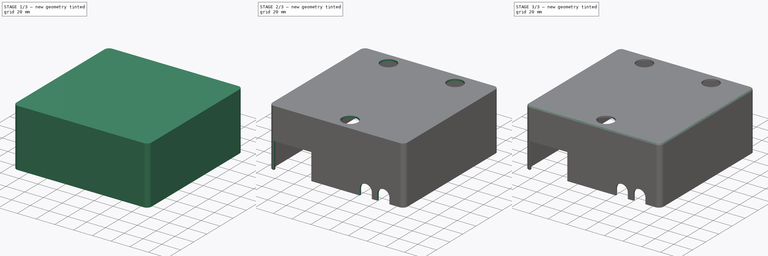
[diagram: build sequence overview — one tinted view per stage of 3, left to right]
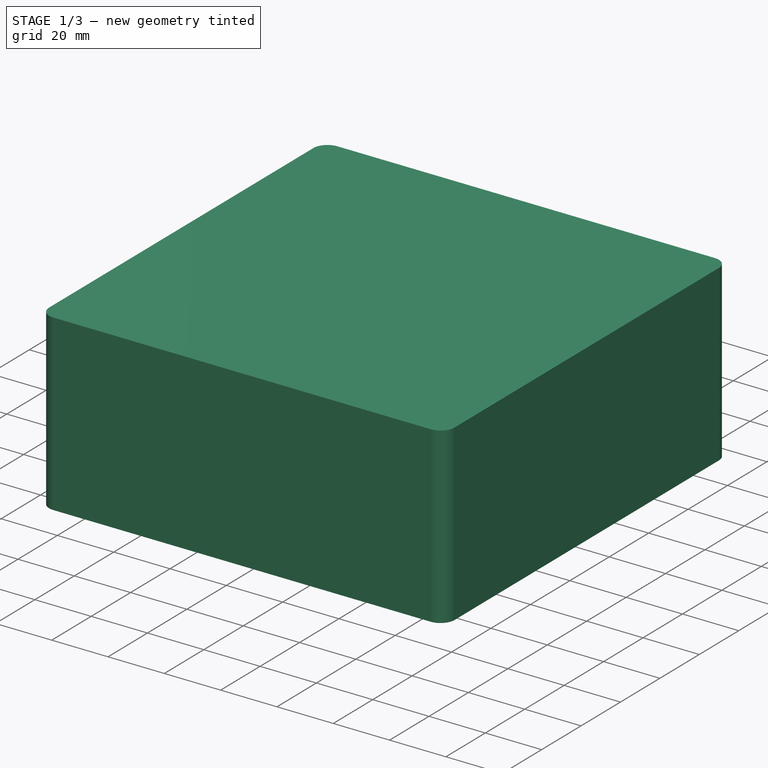
[diagram: stage 1 of 3 — iso view after this stage's code; geometry added in this stage tinted green]
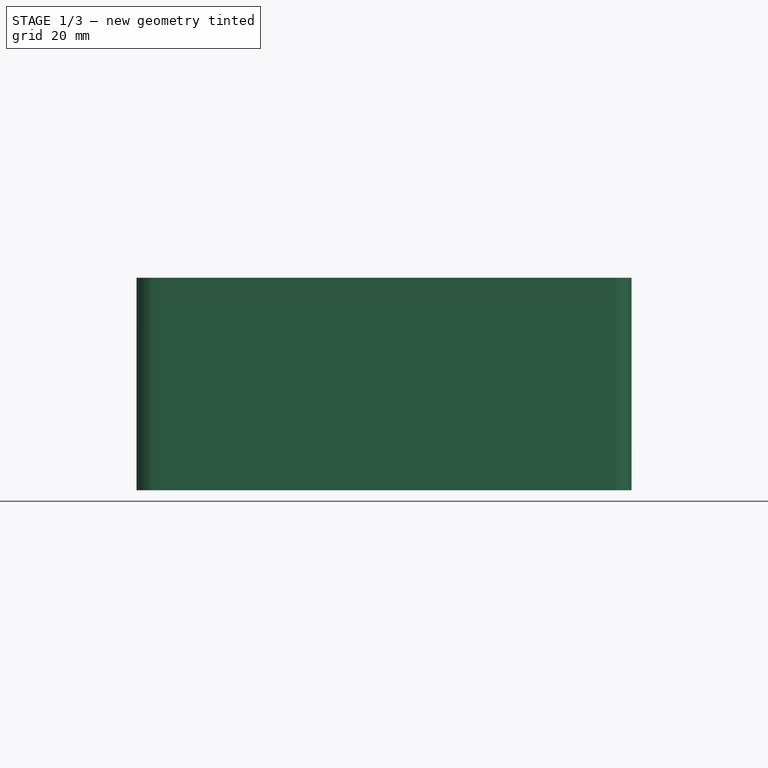
[diagram: stage 1 of 3 — front view after this stage's code; geometry added in this stage tinted green]
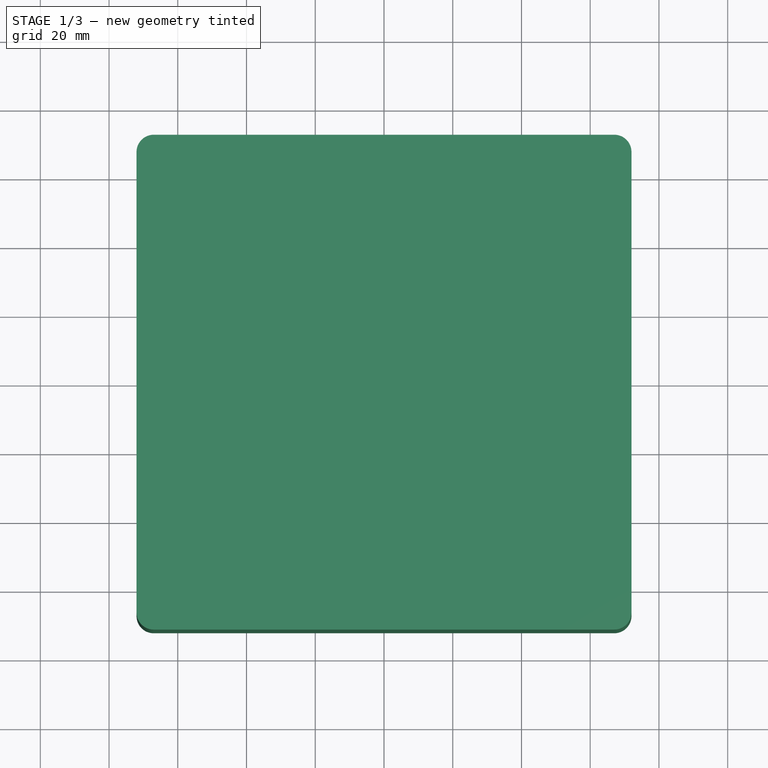
[diagram: stage 1 of 3 — top view after this stage's code; geometry added in this stage tinted green]
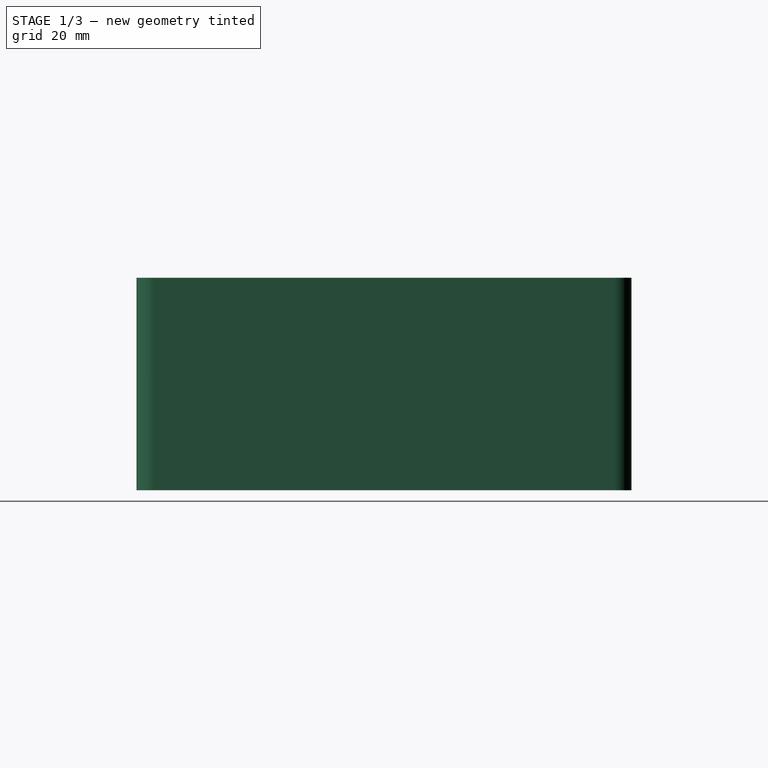
[diagram: stage 1 of 3 — right view after this stage's code; geometry added in this stage tinted green]
FCSTD DOCUMENT  (FreeCAD 0.16R5919 (Git))
Label: case_raspberryB_cover
License: All rights reserved
LicenseURL: http://en.wikipedia.org/wiki/All_rights_reserved
objects: Sketcher::SketchObject×4, PartDesign::Pad×2, PartDesign::Pocket×2, PartDesign::Fillet×2
note: 14 computed .brp shape members not serialized (recipe doc carries the construction recipe); baked Part::Feature solids carry a one-line shape summary decoded from their .brp

FEATURE [Sketcher::SketchObject] Sketch014  label="SketchCaseWall"
  sketch-geometry (16):
    g0: LineSegment StartX=-67 StartY=72 StartZ=0 EndX=67 EndY=72 EndZ=0
    g1: LineSegment StartX=72 StartY=67 StartZ=0 EndX=72 EndY=-67 EndZ=0
    g2: LineSegment StartX=67 StartY=-72 StartZ=0 EndX=-67 EndY=-72 EndZ=0
    g3: LineSegment StartX=-72 StartY=-67 StartZ=0 EndX=-72 EndY=67 EndZ=0
    g4: ArcOfCircle CenterX=-67 CenterY=67 CenterZ=0 NormalX=0 NormalY=0 NormalZ=1 Radius=5 StartAngle=1.5708 EndAngle=3.14159
    g5: ArcOfCircle CenterX=67 CenterY=67 CenterZ=0 NormalX=0 NormalY=0 NormalZ=1 Radius=5 StartAngle=0 EndAngle=1.5708
    g6: ArcOfCircle CenterX=67 CenterY=-67 CenterZ=0 NormalX=0 NormalY=0 NormalZ=1 Radius=5 StartAngle=4.71239 EndAngle=6.28319
    g7: ArcOfCircle CenterX=-67 CenterY=-67 CenterZ=0 NormalX=0 NormalY=0 NormalZ=1 Radius=5 StartAngle=3.14159 EndAngle=4.71239
    g8: LineSegment StartX=-65 StartY=70 StartZ=0 EndX=65 EndY=70 EndZ=0
    g9: LineSegment StartX=70 StartY=65 StartZ=0 EndX=70 EndY=-65 EndZ=0
    g10: LineSegment StartX=65 StartY=-70 StartZ=0 EndX=-65 EndY=-70 EndZ=0
    g11: LineSegment StartX=-70 StartY=-65 StartZ=0 EndX=-70 EndY=65 EndZ=0
    g12: ArcOfCircle CenterX=-65 CenterY=65 CenterZ=0 NormalX=0 NormalY=0 NormalZ=1 Radius=5 StartAngle=1.5708 EndAngle=3.14159
    g13: ArcOfCircle CenterX=65 CenterY=65 CenterZ=0 NormalX=0 NormalY=0 NormalZ=1 Radius=5 StartAngle=0 EndAngle=1.5708
    g14: ArcOfCircle CenterX=65 CenterY=-65 CenterZ=0 NormalX=0 NormalY=0 NormalZ=1 Radius=5 StartAngle=4.71239 EndAngle=6.28319
    g15: ArcOfCircle CenterX=-65 CenterY=-65 CenterZ=0 NormalX=0 NormalY=0 NormalZ=1 Radius=5 StartAngle=3.14159 EndAngle=4.71239
  constraints (37):
    c: Horizontal(g0)
    c: Horizontal(g2)
    c: Tangent(g3,g4) = 1.5708
    c: Tangent(g0,g4) = 1.5708
    c: Tangent(g0,g5) = 1.5708
    c: Tangent(g1,g5) = 1.5708
    c: Tangent(g1,g6) = 1.5708
    c: Tangent(g2,g6) = 1.5708
    c: Tangent(g3,g7) = 1.5708
    c: Tangent(g2,g7) = 1.5708
    c: Equal(g7,g4)
    c: Equal(g4,g5)
    c: Equal(g5,g6)
    c: Symmetric(g3,g1,g-2)
    c: Symmetric(g0,g2,g-1)
    c: DistanceX(g3,g1) = 144
    c: DistanceY(g0,g2) = -144
    c: Radius(g4) = 5
    c: Horizontal(g8)
    c: Horizontal(g10)
    c: Tangent(g11,g12) = 1.5708
    c: Tangent(g8,g12) = 1.5708
    c: Tangent(g8,g13) = 1.5708
    c: Tangent(g9,g13) = 1.5708
    c: Tangent(g9,g14) = 1.5708
    c: Tangent(g10,g14) = 1.5708
    c: Tangent(g11,g15) = 1.5708
    c: Tangent(g10,g15) = 1.5708
    c: Equal(g15,g12)
    c: Equal(g12,g13)
    c: Equal(g13,g14)
    c: DistanceX(g11,g9) = 140
    c: DistanceY(g8,g10) = -140
    c: Equal(g4,g12) = 5
    c: Symmetric(g8,g10,g-1)
    c: Vertical(g9)
    c: Symmetric(g11,g9,g-2)
FEATURE [PartDesign::Pad] Pad
  Length = 60
  Length2 = 100
  Sketch = -> Sketch014
  Type = 0
FEATURE [Sketcher::SketchObject] Sketch015  label="SketchCaseFront"
  Placement = pos=(0,0,60) rot=(0,0,1;0rad)
  Support = -> Pad [Face18]
  sketch-geometry (8):
    g0: LineSegment StartX=-67 StartY=72 StartZ=0 EndX=67 EndY=72 EndZ=0
    g1: LineSegment StartX=72 StartY=67 StartZ=0 EndX=72 EndY=-67 EndZ=0
    g2: LineSegment StartX=67 StartY=-72 StartZ=0 EndX=-67 EndY=-72 EndZ=0
    g3: LineSegment StartX=-72 StartY=-67 StartZ=0 EndX=-72 EndY=67 EndZ=0
    g4: ArcOfCircle CenterX=-67 CenterY=67 CenterZ=0 NormalX=0 NormalY=0 NormalZ=1 Radius=5 StartAngle=1.5708 EndAngle=3.14159
    g5: ArcOfCircle CenterX=67 CenterY=67 CenterZ=0 NormalX=0 NormalY=0 NormalZ=1 Radius=5 StartAngle=0 EndAngle=1.5708
    g6: ArcOfCircle CenterX=67 CenterY=-67 CenterZ=0 NormalX=0 NormalY=0 NormalZ=1 Radius=5 StartAngle=4.71239 EndAngle=6.28319
    g7: ArcOfCircle CenterX=-67 CenterY=-67 CenterZ=0 NormalX=0 NormalY=0 NormalZ=1 Radius=5 StartAngle=3.14159 EndAngle=4.71239
  constraints (18):
    c: Horizontal(g0)
    c: Horizontal(g2)
    c: Tangent(g3,g4) = 1.5708
    c: Tangent(g0,g4) = 1.5708
    c: Tangent(g0,g5) = 1.5708
    c: Tangent(g1,g5) = 1.5708
    c: Tangent(g1,g6) = 1.5708
    c: Tangent(g2,g6) = 1.5708
    c: Tangent(g3,g7) = 1.5708
    c: Tangent(g2,g7) = 1.5708
    c: Equal(g7,g4)
    c: Equal(g4,g5)
    c: Equal(g5,g6)
    c: Symmetric(g3,g1,g-2)
    c: Symmetric(g0,g2,g-1)
    c: DistanceX(g3,g1) = 144
    c: DistanceY(g0,g2) = -144
    c: Radius(g4) = 5
FEATURE [PartDesign::Pad] Pad001
  Length = 1.8
  Length2 = 100
  Sketch = -> Sketch015
  Type = 0
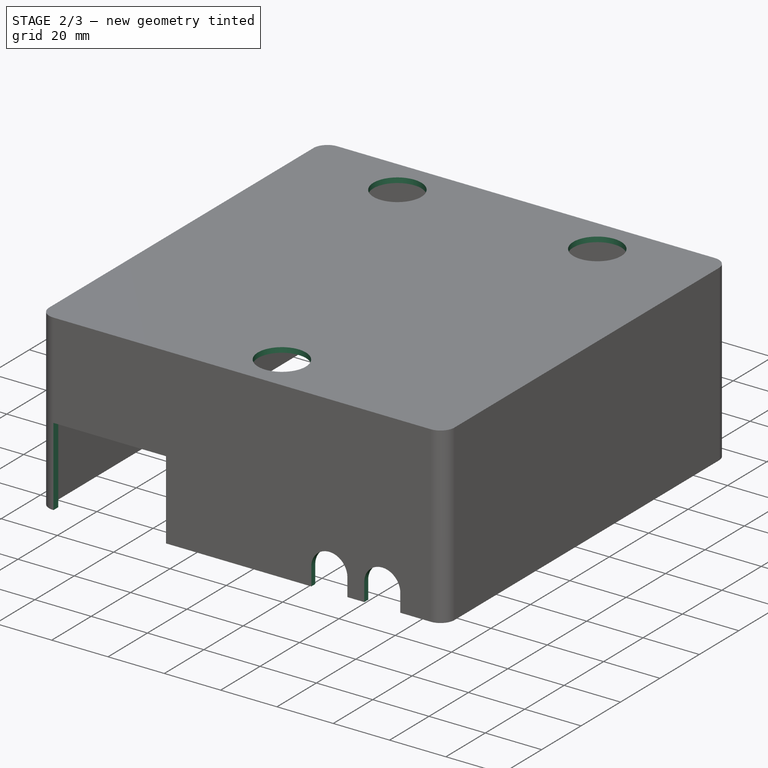
[diagram: stage 2 of 3 — iso view after this stage's code; geometry added in this stage tinted green]
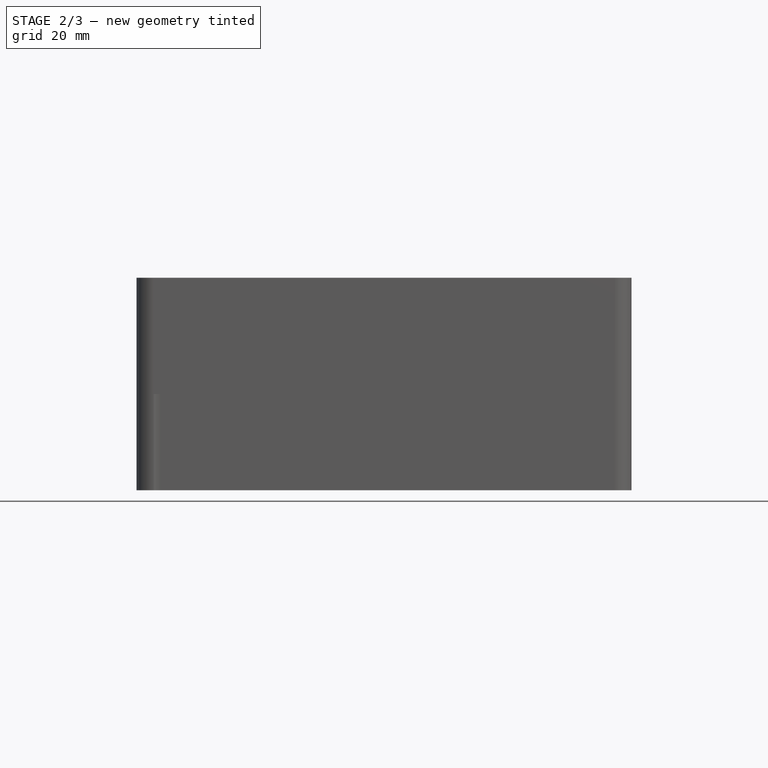
[diagram: stage 2 of 3 — front view after this stage's code; geometry added in this stage tinted green]
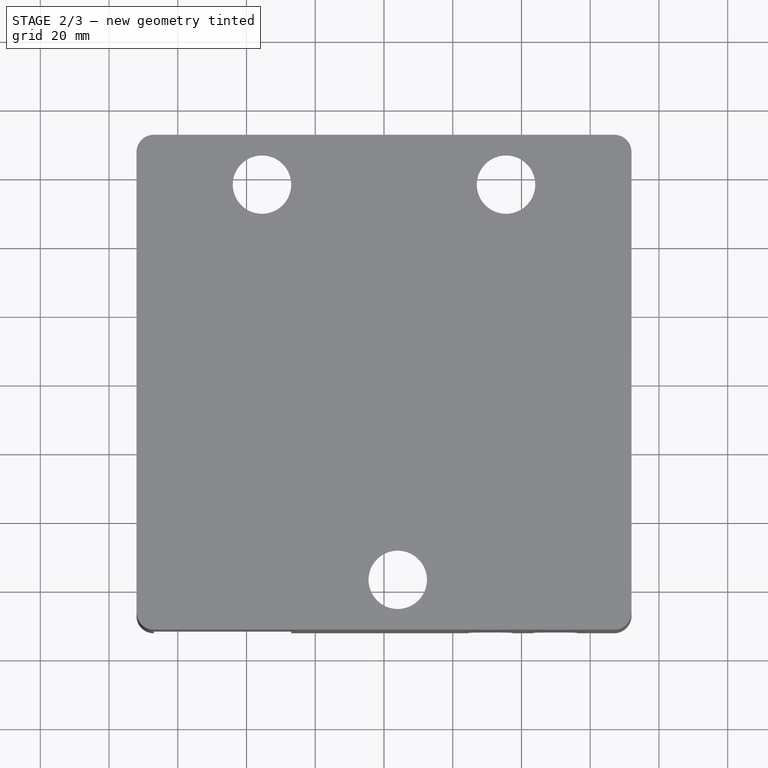
[diagram: stage 2 of 3 — top view after this stage's code; geometry added in this stage tinted green]
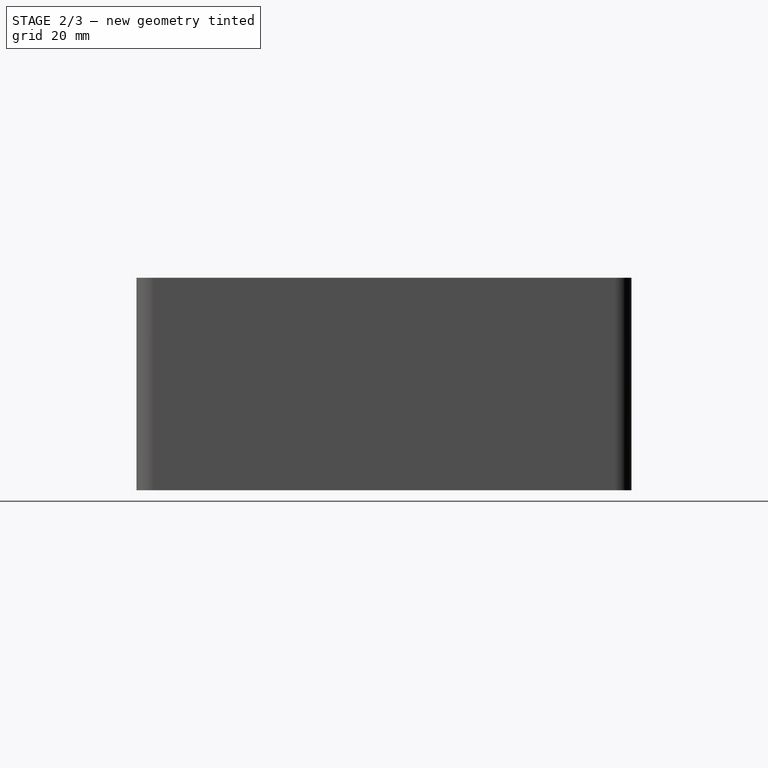
[diagram: stage 2 of 3 — right view after this stage's code; geometry added in this stage tinted green]
FEATURE [Sketcher::SketchObject] Sketch004  label="SketchSuckerMounting"
  Placement = pos=(0,0,61.8) rot=(0,0,1;0rad)
  Support = -> Pad001 [Face27]
  sketch-geometry (5):
    g0: Circle CenterX=-35.5 CenterY=57.5 CenterZ=0 NormalX=0 NormalY=0 NormalZ=1 Radius=8.5
    g1: Circle CenterX=35.5 CenterY=57.5 CenterZ=0 NormalX=0 NormalY=0 NormalZ=1 Radius=8.5
    g2: Circle CenterX=4 CenterY=-57.5 CenterZ=0 NormalX=0 NormalY=0 NormalZ=1 Radius=8.5
    g3: LineSegment [constr] StartX=-35.5 StartY=57.5 StartZ=0 EndX=0 EndY=57.5 EndZ=0
    g4: LineSegment [constr] StartX=0 StartY=57.5 StartZ=0 EndX=35.5 EndY=57.5 EndZ=0
  constraints (13):
    c: Symmetric(g0,g1,g-2)
    c: Radius(g1) = 8.5
    c: Equal(g2,g1)
    c: Coincident(g3,g0)
    c: PointOnObject(g3,g-2)
    c: Horizontal(g3)
    c: Coincident(g4,g3)
    c: Coincident(g4,g1)
    c: DistanceX(g-1,g2) = 4
    c: DistanceY(g-1,g2) = -57.5
    c: DistanceY(g-1,g1) = 57.5
    c: Equal(g0,g1)
    c: DistanceX(g0,g1) = 71
FEATURE [PartDesign::Pocket] Pocket
  Length = 5
  Sketch = -> Sketch004
  Type = 0
FEATURE [Sketcher::SketchObject] Sketch016  label="SketchCableHole"
  Placement = pos=(0,-72,0) rot=(1,0,0;1.5708rad)
  Support = -> Pocket [Face8]
  sketch-geometry (13):
    g0: ArcOfCircle CenterX=31 CenterY=6.4 CenterZ=0 NormalX=0 NormalY=0 NormalZ=1 Radius=6.4 StartAngle=0 EndAngle=3.14159
    g1: LineSegment StartX=24.6 StartY=6.4 StartZ=0 EndX=24.6 EndY=0 EndZ=0
    g2: LineSegment StartX=37.4 StartY=6.4 StartZ=0 EndX=37.4 EndY=0 EndZ=0
    g3: LineSegment StartX=24.6 StartY=0 StartZ=0 EndX=37.4 EndY=0 EndZ=0
    g4: ArcOfCircle CenterX=49.8 CenterY=6.4 CenterZ=0 NormalX=0 NormalY=0 NormalZ=1 Radius=6.4 StartAngle=0 EndAngle=3.14159
    g5: LineSegment StartX=43.4 StartY=6.4 StartZ=0 EndX=43.4 EndY=0 EndZ=0
    g6: LineSegment StartX=56.2 StartY=6.4 StartZ=0 EndX=56.2 EndY=0 EndZ=0
    g7: LineSegment StartX=43.4 StartY=0 StartZ=0 EndX=56.2 EndY=0 EndZ=0
    g8: LineSegment StartX=-27 StartY=0 StartZ=0 EndX=-67 EndY=0 EndZ=0
    g9: LineSegment StartX=-67 StartY=0 StartZ=0 EndX=-67 EndY=28 EndZ=0
    g10: LineSegment StartX=-67 StartY=28 StartZ=0 EndX=-27 EndY=28 EndZ=0
    g11: LineSegment StartX=-27 StartY=28 StartZ=0 EndX=-27 EndY=0 EndZ=0
    g12: LineSegment [constr] StartX=-71.8616 StartY=50.0196 StartZ=0 EndX=-71.8616 EndY=0 EndZ=0
  constraints (42):
    c: Angle(g0) = 3.14159
    c: Coincident(g1,g0)
    c: Vertical(g1)
    c: Coincident(g2,g0)
    c: Vertical(g2)
    c: DistanceY(g-1,g1) = 0
    c: Equal(g2,g1)
    c: Coincident(g3,g1)
    c: Coincident(g3,g2)
    c: Horizontal(g3)
    c: Radius(g0) = 6.4
    c: DistanceX(g-1,g1) = 24.6
    c: Distance(g2) = 6.4
    c: Parallel(g0,g4) = 3.14159
    c: Coincident(g5,g4)
    c: Vertical(g5)
    c: Coincident(g6,g4)
    c: Vertical(g6)
    c: Equal(g6,g5)
    c: Coincident(g7,g5)
    c: Coincident(g7,g6)
    c: Horizontal(g7)
    c: Equal(g0,g4) = 6
    c: DistanceX(g2,g5) = 6
    c: Equal(g6,g2)
    c: DistanceY(g-1,g5) = 0
    c: Angle(g4) = 3.14159
    c: Coincident(g8,g9)
    c: Coincident(g9,g10)
    c: Coincident(g10,g11)
    c: Coincident(g11,g8)
    c: Horizontal(g8)
    c: Horizontal(g10)
    c: Vertical(g9)
    c: Vertical(g11)
    c: PointOnObject(g8,g-1)
    c: DistanceX(g10) = 40
    c: DistanceY(g11) = -28
    c: DistanceX(g-1,g8) = -27
    c: PointOnObject(g12,g-1)
    c: Vertical(g12)
    c: DistanceX(g12,g8) = 4.86165
FEATURE [PartDesign::Pocket] Pocket001
  Length = 5
  Sketch = -> Sketch016
  Type = 0
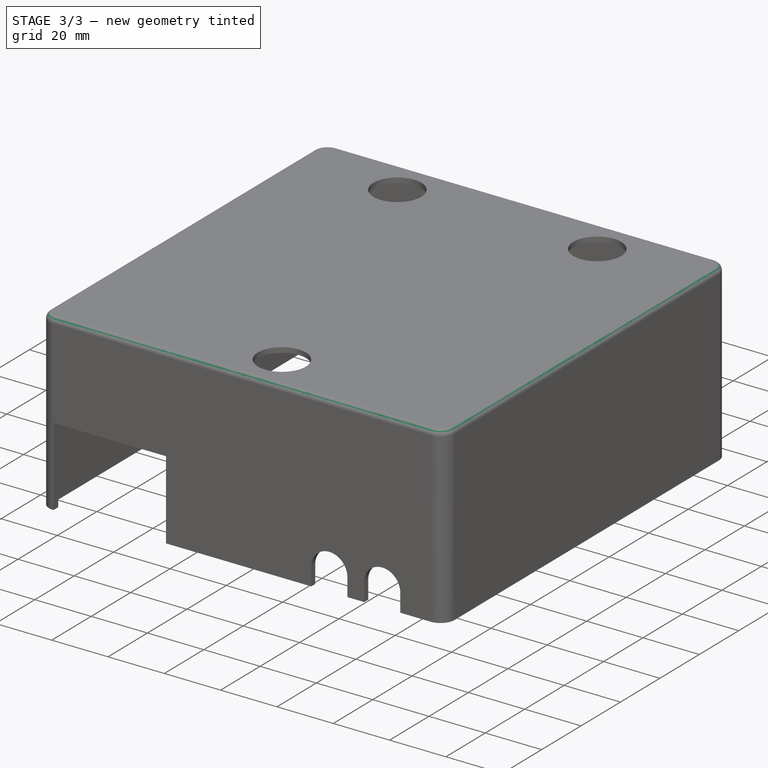
[diagram: stage 3 of 3 — iso view after this stage's code; geometry added in this stage tinted green]
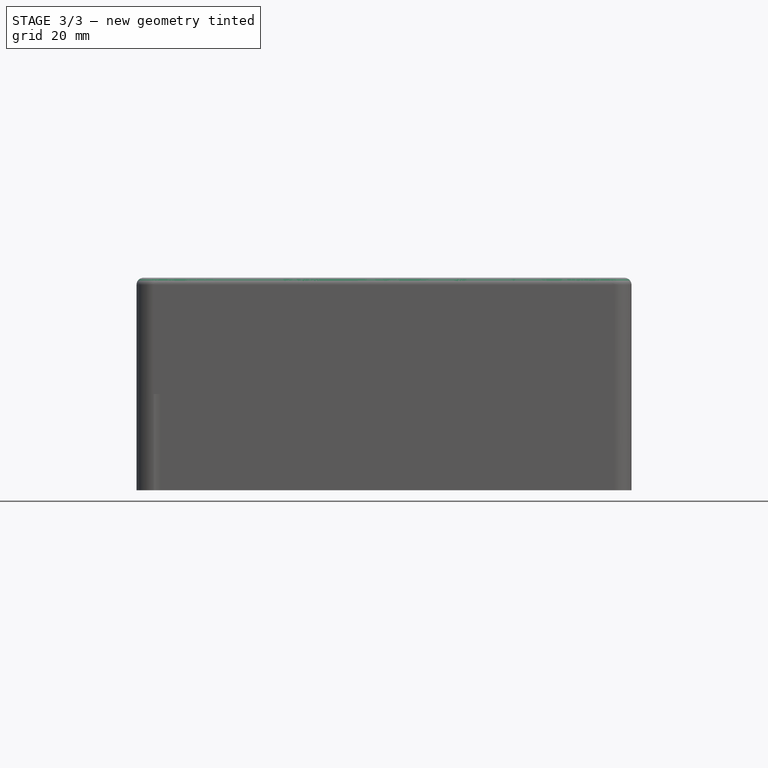
[diagram: stage 3 of 3 — front view after this stage's code; geometry added in this stage tinted green]
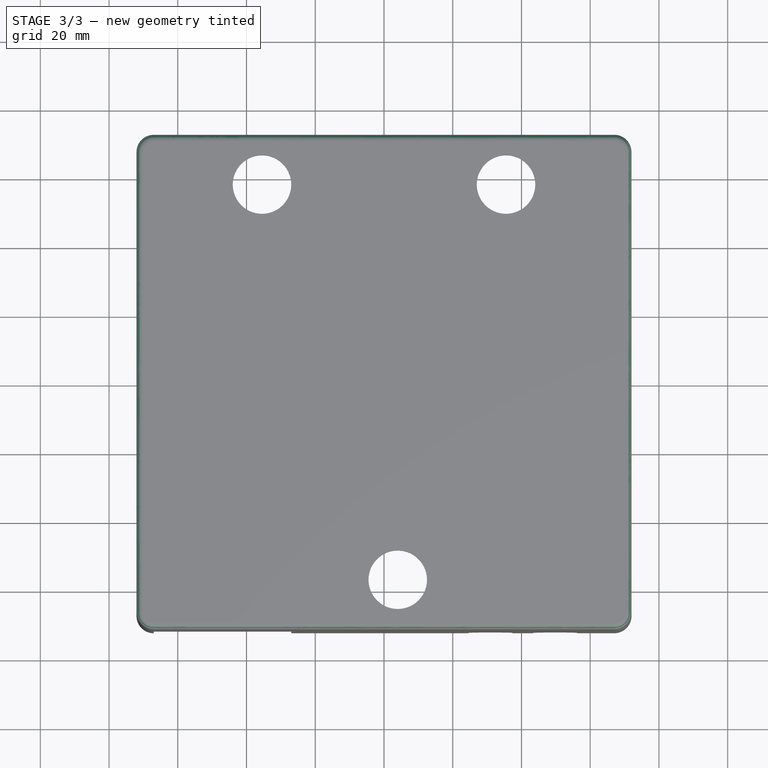
[diagram: stage 3 of 3 — top view after this stage's code; geometry added in this stage tinted green]
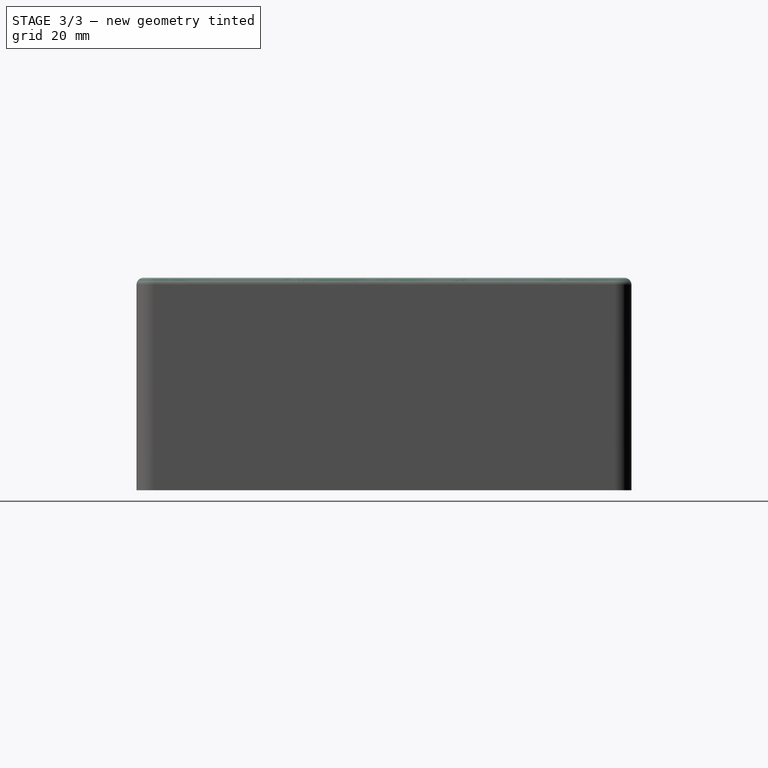
[diagram: stage 3 of 3 — right view after this stage's code; geometry added in this stage tinted green]
FEATURE [PartDesign::Fillet] Fillet
  Base = -> Pocket001 [Edge81,Edge80,Edge77,Edge102,Edge97,Edge88,Edge85,Edge84]
  Radius = 2
FEATURE [PartDesign::Fillet] Fillet001
  Base = -> Fillet [Edge80,Edge77,Edge75,Edge81,Edge84,Edge85,Edge88,Edge90]
  Radius = 2
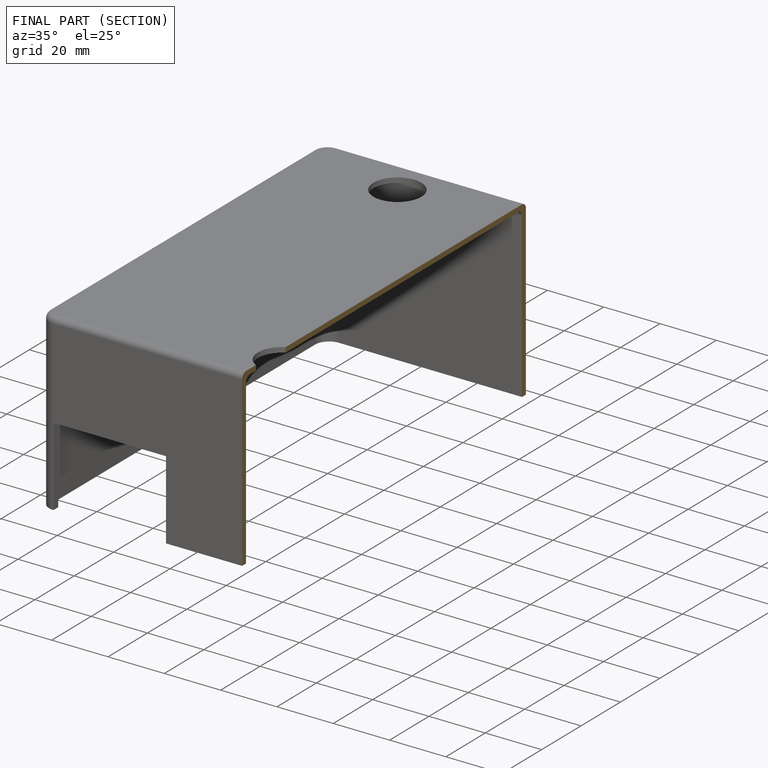
[diagram: finished part — half-section view (interior)]
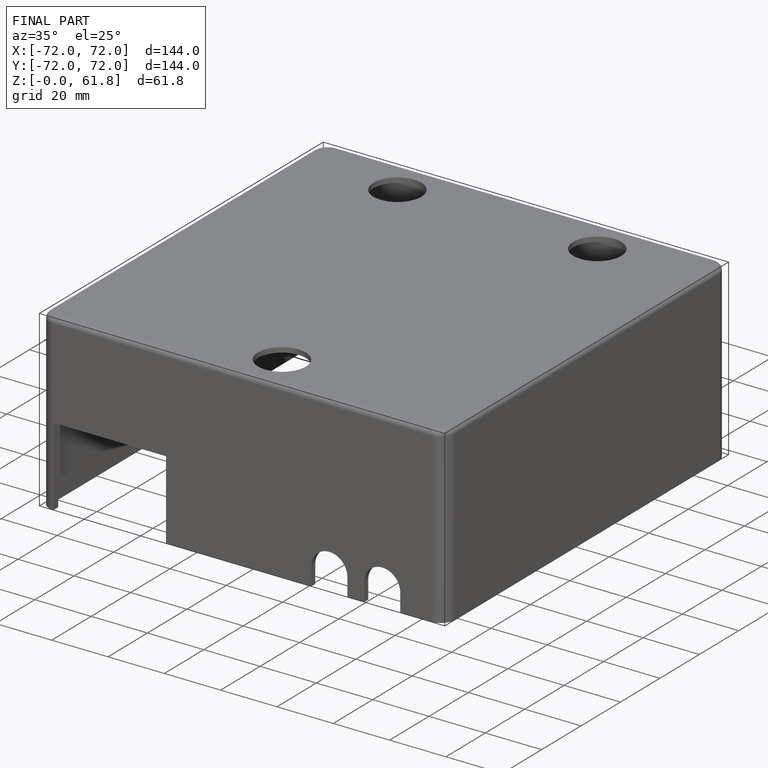
[diagram: finished part — iso view with bounding-box wireframe]
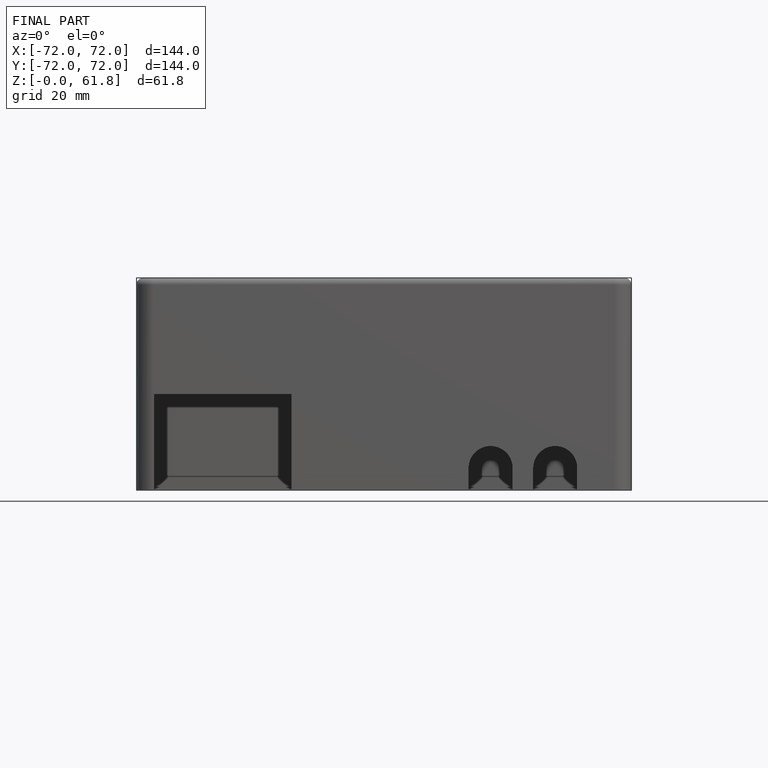
[diagram: finished part — front view with bounding-box wireframe]
